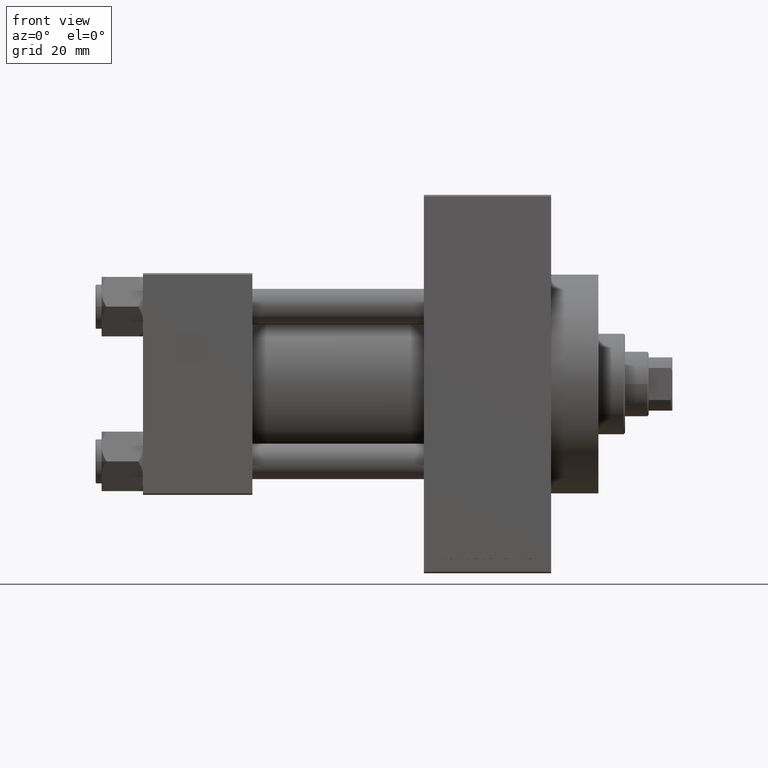
[diagram: clean part render]
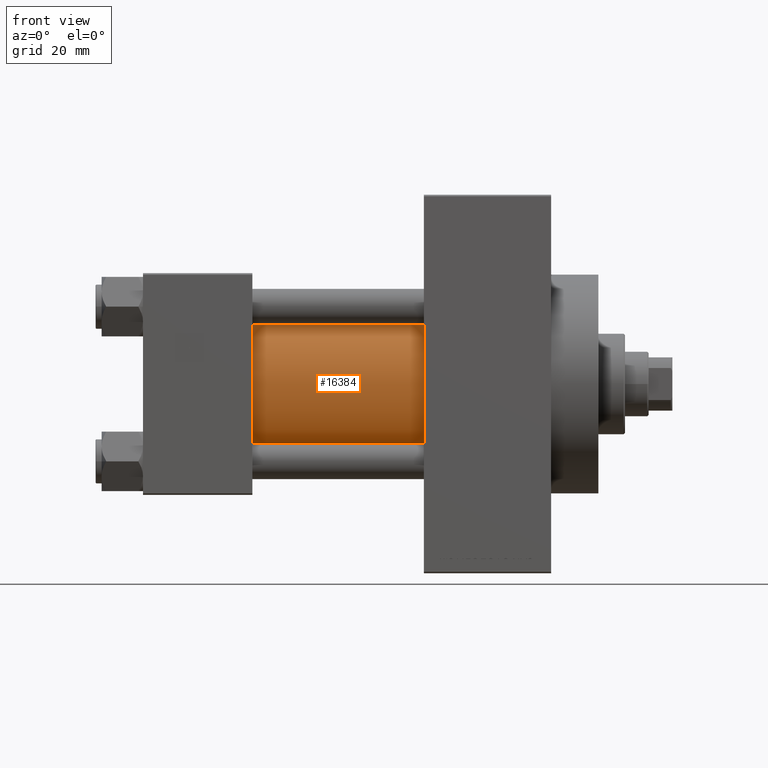
[diagram: same view with one face highlighted and labeled with its STEP entity id]
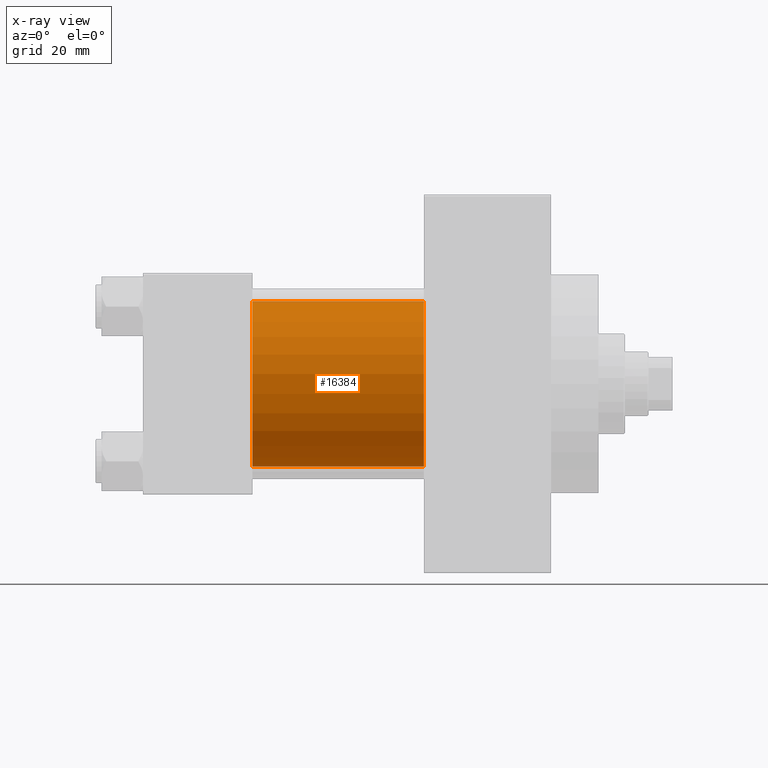
[diagram: x-ray of the same camera — body ghosted, the highlighted face saturated]
A machine part, front view. The second image highlights one B-rep face of the part: STEP entity #16384.
The next image is the same camera in x-ray: the body ghosted, the highlighted face saturated — about 2% of this face is hidden behind the body in this view.
In plain terms, the highlighted cylindrical surface (partial cylindrical patch) has radius 28 mm, axis along (-1, -0, -0).
Its self-contained STEP definition (entity closure, byte-faithful):
#642 = CARTESIAN_POINT ( 'NONE',  ( 95.00000000000000000, -2.602085213965210642E-15, 28.00000000000000000 ) ) ;
#1248 = CARTESIAN_POINT ( 'NONE',  ( 95.00000000000000000, -2.602085213965210642E-15, 0.000000000000000000 ) ) ;
#1641 = DIRECTION ( 'NONE',  ( -1.000000000000000000, -0.000000000000000000, -0.000000000000000000 ) ) ;
#2741 = CARTESIAN_POINT ( 'NONE',  ( 95.00000000000000000, 8.269258236473776482E-16, -28.00000000000000000 ) ) ;
#3291 = VERTEX_POINT ( 'NONE', #28850 ) ;
#4681 = CARTESIAN_POINT ( 'NONE',  ( 95.00000000000000000, 8.269258236473776482E-16, -28.00000000000000000 ) ) ;
#6075 = CARTESIAN_POINT ( 'NONE',  ( 95.00000000000000000, -2.602085213965210642E-15, 28.00000000000000000 ) ) ;
#8774 = CYLINDRICAL_SURFACE ( 'NONE', #22839, 28.00000000000000000 ) ;
#9865 = VERTEX_POINT ( 'NONE', #6075 ) ;
#10459 = VERTEX_POINT ( 'NONE', #27046 ) ;
#10948 = AXIS2_PLACEMENT_3D ( 'NONE', #42265, #11834, #39715 ) ;
#11173 = ORIENTED_EDGE ( 'NONE', *, *, #26051, .F. ) ;
#11491 = VERTEX_POINT ( 'NONE', #2741 ) ;
#11834 = DIRECTION ( 'NONE',  ( 1.000000000000000000, -0.000000000000000000, 0.000000000000000000 ) ) ;
#15900 = VECTOR ( 'NONE', #46550, 1000.000000000000000 ) ;
#16384 = ADVANCED_FACE ( 'NONE', ( #23711 ), #8774, .T. ) ;
#16402 = DIRECTION ( 'NONE',  ( 1.000000000000000000, 0.000000000000000000, 0.000000000000000000 ) ) ;
#18060 = EDGE_CURVE ( 'NONE', #3291, #10459, #35633, .T. ) ;
#19882 = VECTOR ( 'NONE', #1641, 1000.000000000000000 ) ;
#22839 = AXIS2_PLACEMENT_3D ( 'NONE', #23960, #30704, #45928 ) ;
#23711 = FACE_OUTER_BOUND ( 'NONE', #47567, .T. ) ;
#23960 = CARTESIAN_POINT ( 'NONE',  ( 95.00000000000000000, -2.602085213965210642E-15, 0.000000000000000000 ) ) ;
#26051 = EDGE_CURVE ( 'NONE', #9865, #11491, #27041, .T. ) ;
#27041 = CIRCLE ( 'NONE', #40568, 28.00000000000000000 ) ;
#27046 = CARTESIAN_POINT ( 'NONE',  ( 37.00000000000000000, 8.269258236473776482E-16, -28.00000000000000000 ) ) ;
#28850 = CARTESIAN_POINT ( 'NONE',  ( 37.00000000000000000, -2.602085213965210642E-15, 28.00000000000000000 ) ) ;
#30704 = DIRECTION ( 'NONE',  ( -1.000000000000000000, -0.000000000000000000, -0.000000000000000000 ) ) ;
#35633 = CIRCLE ( 'NONE', #10948, 28.00000000000000000 ) ;
#35755 = LINE ( 'NONE', #642, #19882 ) ;
#36223 = EDGE_CURVE ( 'NONE', #11491, #10459, #47044, .T. ) ;
#36548 = EDGE_CURVE ( 'NONE', #9865, #3291, #35755, .T. ) ;
#37421 = ORIENTED_EDGE ( 'NONE', *, *, #18060, .T. ) ;
#39715 = DIRECTION ( 'NONE',  ( 0.000000000000000000, 0.000000000000000000, 1.000000000000000000 ) ) ;
#40568 = AXIS2_PLACEMENT_3D ( 'NONE', #1248, #16402, #46838 ) ;
#41153 = ORIENTED_EDGE ( 'NONE', *, *, #36548, .T. ) ;
#42265 = CARTESIAN_POINT ( 'NONE',  ( 37.00000000000000000, -2.602085213965210642E-15, 0.000000000000000000 ) ) ;
#44145 = ORIENTED_EDGE ( 'NONE', *, *, #36223, .F. ) ;
#45928 = DIRECTION ( 'NONE',  ( 0.000000000000000000, 0.000000000000000000, 1.000000000000000000 ) ) ;
#46550 = DIRECTION ( 'NONE',  ( -1.000000000000000000, -0.000000000000000000, -0.000000000000000000 ) ) ;
#46838 = DIRECTION ( 'NONE',  ( 0.000000000000000000, 0.000000000000000000, -1.000000000000000000 ) ) ;
#47044 = LINE ( 'NONE', #4681, #15900 ) ;
#47567 = EDGE_LOOP ( 'NONE', ( #44145, #11173, #41153, #37421 ) ) ;